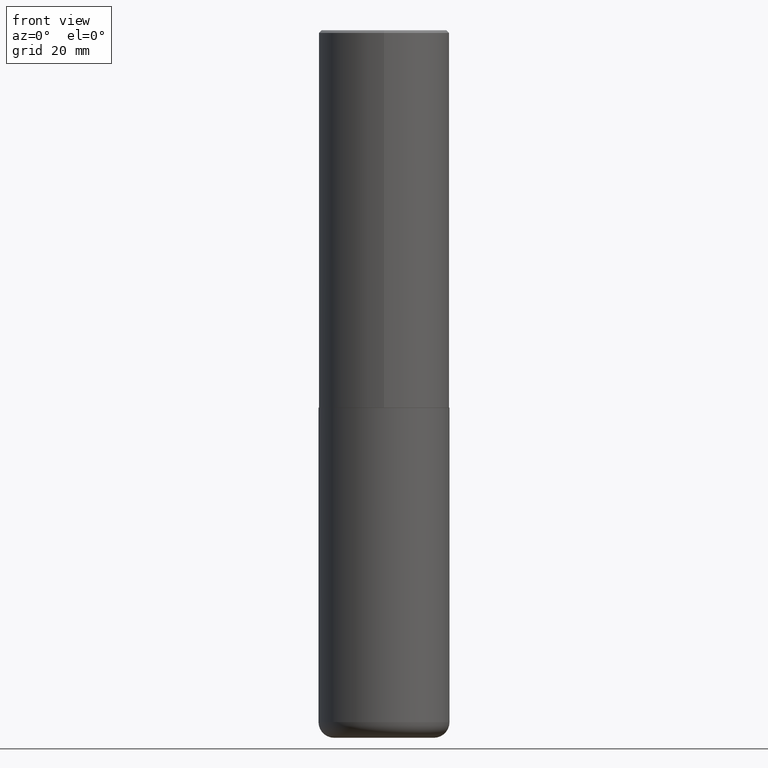
[diagram: clean part render]
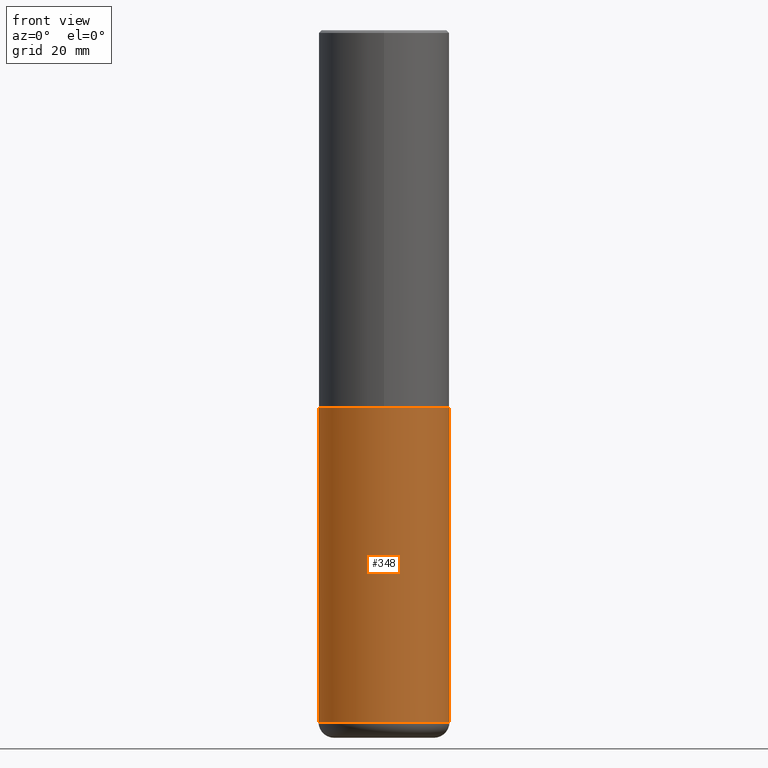
[diagram: same view with one face highlighted and labeled with its STEP entity id]
A machine part, front view. The second image highlights one B-rep face of the part: STEP entity #348.
In plain terms, the highlighted cylindrical surface (partial cylindrical patch) has radius 12.5006 mm, axis along (-0, 0, 1).
Its self-contained STEP definition (entity closure, byte-faithful):
#2 = CIRCLE ( 'NONE', #196, 0.4921499999999999764 ) ;
#6 = DIRECTION ( 'NONE',  ( -2.445468806185136877E-29, 3.491481338843145188E-15, 1.000000000000000000 ) ) ;
#33 = CARTESIAN_POINT ( 'NONE',  ( -0.4921499999999999764, 3.496936074043332897E-15, -2.420853904668951509E-29 ) ) ;
#34 = CARTESIAN_POINT ( 'NONE',  ( -0.4921499999999999764, -1.052415468648297289E-14, -2.834700000000000220 ) ) ;
#37 = VECTOR ( 'NONE', #122, 39.37007874015748143 ) ;
#57 = AXIS2_PLACEMENT_3D ( 'NONE', #200, #365, #74 ) ;
#68 = CARTESIAN_POINT ( 'NONE',  ( 0.4921499999999999764, -2.158154445165724138E-14, -5.196900000000000297 ) ) ;
#73 = EDGE_CURVE ( 'NONE', #358, #264, #290, .T. ) ;
#74 = DIRECTION ( 'NONE',  ( 1.000000000000000000, -6.982962677686265922E-15, 0.000000000000000000 ) ) ;
#84 = CARTESIAN_POINT ( 'NONE',  ( 0.4921499999999999764, -1.333396723304196175E-14, -2.834700000000000220 ) ) ;
#85 = EDGE_CURVE ( 'NONE', #93, #177, #2, .T. ) ;
#93 = VERTEX_POINT ( 'NONE', #129 ) ;
#95 = EDGE_CURVE ( 'NONE', #93, #358, #259, .T. ) ;
#106 = DIRECTION ( 'NONE',  ( -2.445468806185136597E-29, 3.491481338843145583E-15, 1.000000000000000000 ) ) ;
#122 = DIRECTION ( 'NONE',  ( -2.445468806185136877E-29, 3.491481338843145188E-15, 1.000000000000000000 ) ) ;
#123 = ORIENTED_EDGE ( 'NONE', *, *, #85, .T. ) ;
#129 = CARTESIAN_POINT ( 'NONE',  ( -0.4921499999999999764, -1.464794329579061349E-14, -5.196900000000000297 ) ) ;
#164 = DIRECTION ( 'NONE',  ( 1.000000000000000000, -6.982962677686265922E-15, 4.876176775795935793E-29 ) ) ;
#175 = AXIS2_PLACEMENT_3D ( 'NONE', #331, #309, #164 ) ;
#177 = VERTEX_POINT ( 'NONE', #68 ) ;
#182 = CARTESIAN_POINT ( 'NONE',  ( 1.270885683886353718E-28, -1.814487936983394718E-14, -5.196900000000000297 ) ) ;
#183 = VECTOR ( 'NONE', #6, 39.37007874015748143 ) ;
#196 = AXIS2_PLACEMENT_3D ( 'NONE', #182, #106, #327 ) ;
#200 = CARTESIAN_POINT ( 'NONE',  ( 6.932170424893007423E-29, -9.897302151218665974E-15, -2.834700000000000220 ) ) ;
#229 = CYLINDRICAL_SURFACE ( 'NONE', #175, 0.4921499999999999764 ) ;
#235 = ORIENTED_EDGE ( 'NONE', *, *, #95, .F. ) ;
#259 = LINE ( 'NONE', #33, #183 ) ;
#264 = VERTEX_POINT ( 'NONE', #84 ) ;
#270 = FACE_OUTER_BOUND ( 'NONE', #369, .T. ) ;
#290 = CIRCLE ( 'NONE', #57, 0.4921499999999999764 ) ;
#298 = EDGE_CURVE ( 'NONE', #177, #264, #329, .T. ) ;
#301 = ORIENTED_EDGE ( 'NONE', *, *, #73, .F. ) ;
#309 = DIRECTION ( 'NONE',  ( -2.445468806185136597E-29, 3.491481338843145583E-15, 1.000000000000000000 ) ) ;
#327 = DIRECTION ( 'NONE',  ( 1.000000000000000000, -6.982962677686265922E-15, 0.000000000000000000 ) ) ;
#329 = LINE ( 'NONE', #413, #37 ) ;
#331 = CARTESIAN_POINT ( 'NONE',  ( 0.000000000000000000, 0.000000000000000000, 0.000000000000000000 ) ) ;
#348 = ADVANCED_FACE ( 'NONE', ( #270 ), #229, .T. ) ;
#358 = VERTEX_POINT ( 'NONE', #34 ) ;
#365 = DIRECTION ( 'NONE',  ( -2.445468806185136597E-29, 3.491481338843145583E-15, 1.000000000000000000 ) ) ;
#366 = ORIENTED_EDGE ( 'NONE', *, *, #298, .T. ) ;
#369 = EDGE_LOOP ( 'NONE', ( #235, #123, #366, #301 ) ) ;
#413 = CARTESIAN_POINT ( 'NONE',  ( 0.4921499999999999764, -3.436665081823295777E-15, 2.399810400207969603E-29 ) ) ;